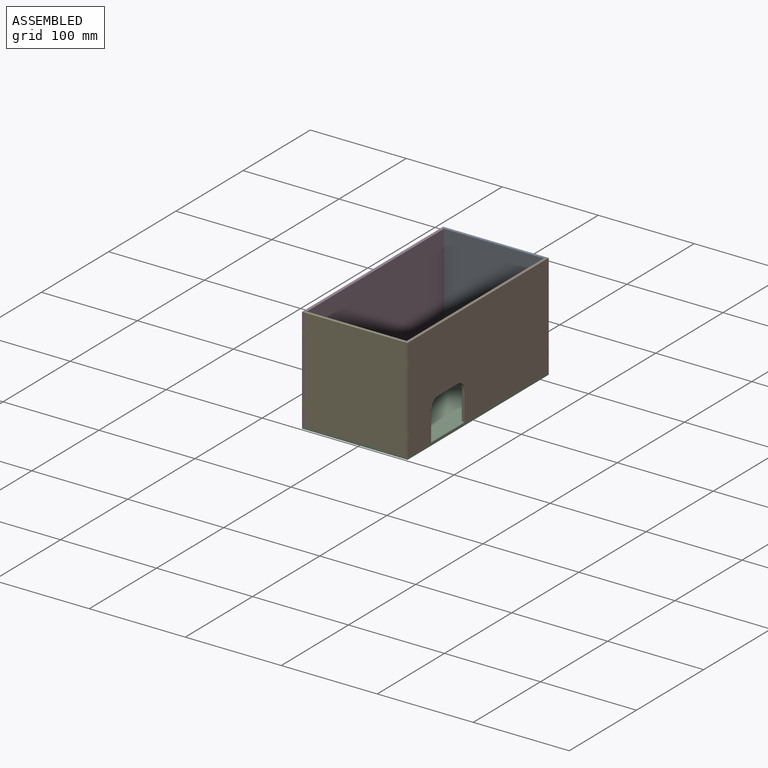
[diagram: assembled view]
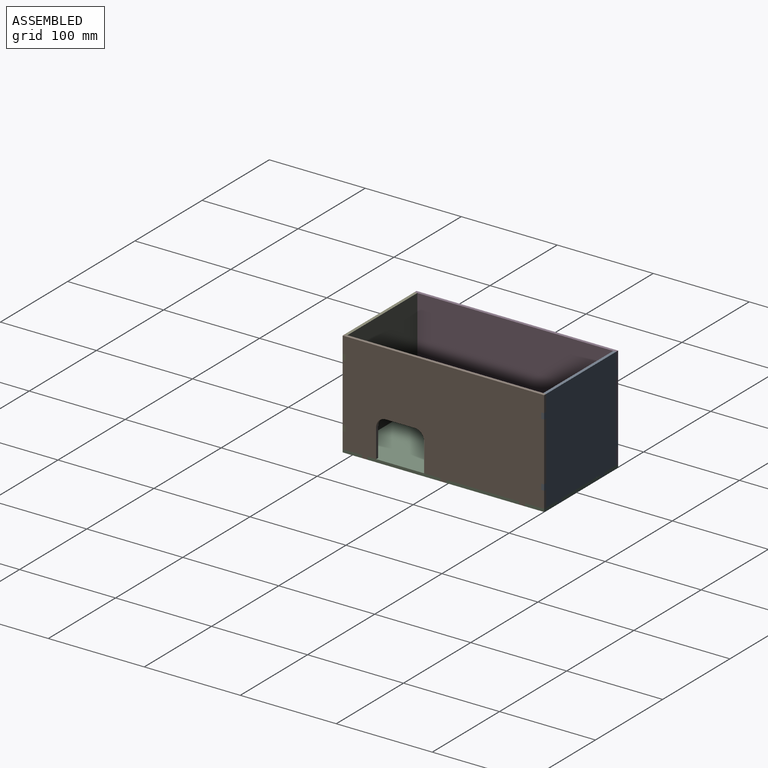
[diagram: assembled view, second angle]
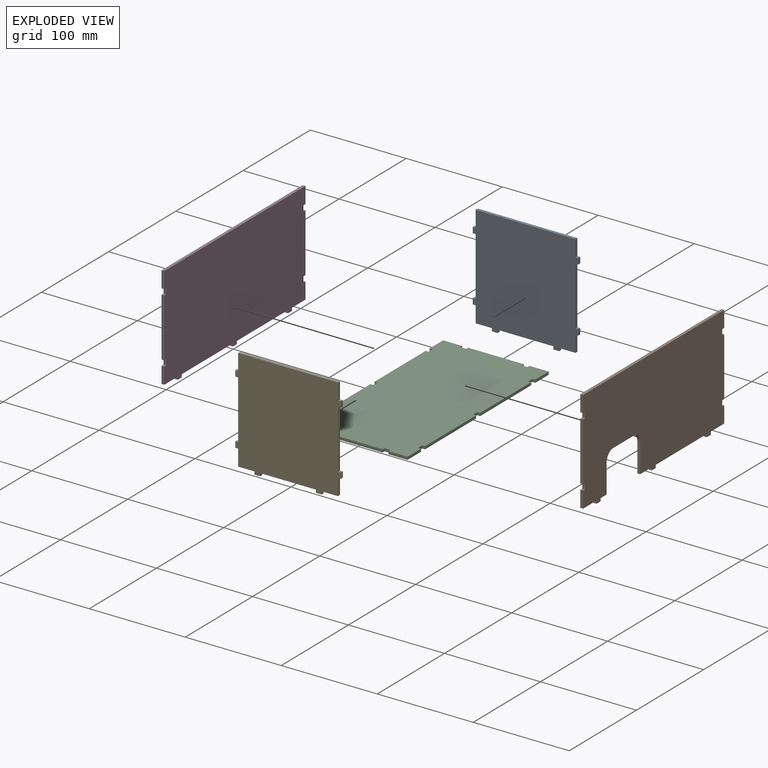
[diagram: exploded view]
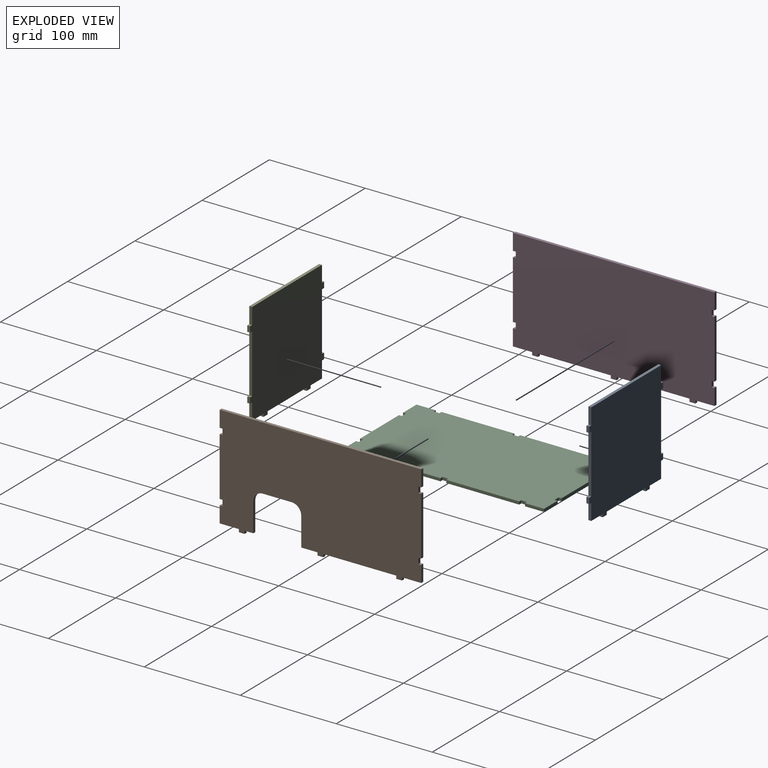
[diagram: exploded view, second angle]
ASSEMBLY  parts=5 mates=4
PART A: 30 faces, bbox 110x3x110 mm
  f0: plane 3x3mm, normal (1,0,0), area 9mm2, adj f1,f27,f28,f29
  f1: plane 58x3mm, normal (0,0,-1), area 174mm2, adj f0,f2,f28,f29
  f2: plane 3x3mm, normal (-1,0,0), area 9mm2, adj f1,f3,f28,f29
  f3: plane 6x3mm, normal (0,0,-1), area 18mm2, adj f2,f4,f28,f29
  f4: plane 3x3mm, normal (1,0,0), area 9mm2, adj f3,f5,f28,f29
  f5: plane 17x3mm, normal (0,0,-1), area 51mm2, adj f4,f6,f28,f29
  f6: plane 17x3mm, normal (1,0,0), area 51mm2, adj f5,f7,f28,f29
  f7: plane 3x3mm, normal (0,0,-1), area 9mm2, adj f6,f8,f28,f29
  f8: plane 6x3mm, normal (1,0,0), area 18mm2, adj f7,f9,f28,f29
  f9: plane 3x3mm, normal (0,0,1), area 9mm2, adj f8,f10,f28,f29
  f10: plane 61x3mm, normal (1,0,0), area 183mm2, adj f9,f11,f28,f29
  f11: plane 3x3mm, normal (0,0,-1), area 9mm2, adj f10,f12,f28,f29
  f12: plane 6x3mm, normal (1,0,0), area 18mm2, adj f11,f13,f28,f29
  f13: plane 3x3mm, normal (0,0,1), area 9mm2, adj f12,f14,f28,f29
  f14: plane 17x3mm, normal (1,0,0), area 51mm2, adj f13,f15,f28,f29
  f15: plane 104x3mm, normal (0,0,1), area 312mm2, adj f14,f16,f28,f29
  f16: plane 17x3mm, normal (-1,0,0), area 51mm2, adj f15,f17,f28,f29
  f17: plane 3x3mm, normal (0,0,1), area 9mm2, adj f16,f18,f28,f29
  f18: plane 6x3mm, normal (-1,0,0), area 18mm2, adj f17,f19,f28,f29
  f19: plane 3x3mm, normal (0,0,-1), area 9mm2, adj f18,f20,f28,f29
  f20: plane 61x3mm, normal (-1,0,0), area 183mm2, adj f19,f21,f28,f29
  f21: plane 3x3mm, normal (0,0,1), area 9mm2, adj f20,f22,f28,f29
  f22: plane 6x3mm, normal (-1,0,0), area 18mm2, adj f21,f23,f28,f29
  f23: plane 3x3mm, normal (0,0,-1), area 9mm2, adj f22,f24,f28,f29
  f24: plane 17x3mm, normal (-1,0,0), area 51mm2, adj f23,f25,f28,f29
  f25: plane 17x3mm, normal (0,0,-1), area 51mm2, adj f24,f26,f28,f29
  f26: plane 3x3mm, normal (-1,0,0), area 9mm2, adj f25,f27,f28,f29
  f27: plane 6x3mm, normal (0,0,-1), area 18mm2, adj f0,f26,f28,f29
  f28: plane 110x110mm, normal (0,-1,0), area 11236mm2, adj f0,f1,f2,f3,f4,f5,f6,f7
  f29: plane 110x110mm, normal (0,1,0), area 11236mm2, adj f0,f1,f2,f3,f4,f5,f6,f7
PART B: 40 faces, bbox 3x210x110 mm
  f0: plane 9x3mm, normal (0,0,-1), area 27mm2, adj f5,f6,f16,f35
  f1: plane 61x3mm, normal (0,1,0), area 183mm2, adj f5,f6,f29,f32
  f2: plane 17x3mm, normal (0,1,0), area 51mm2, adj f5,f6,f13,f31
  f3: plane 17x3mm, normal (0,-1,0), area 51mm2, adj f5,f6,f9,f27
  f4: plane 61x3mm, normal (0,-1,0), area 183mm2, adj f5,f6,f24,f26
  f5: plane 210x110mm, normal (1,0,0), area 20494.9mm2, adj f0,f1,f2,f3,f4,f7,f8,f9
  f6: plane 210x110mm, normal (-1,0,0), area 20494.9mm2, adj f0,f1,f2,f3,f4,f7,f8,f9
  f7: plane 76x3mm, normal (0,0,-1), area 228mm2, adj f5,f6,f19,f20
  f8: plane 17x3mm, normal (0,0,-1), area 51mm2, adj f5,f6,f17,f36
  f9: plane 20x3mm, normal (0,0,-1), area 60mm2, adj f3,f5,f6,f14
  f10: plane 17x3mm, normal (0,1,0), area 51mm2, adj f5,f6,f11,f33
  f11: plane 210x3mm, normal (0,0,1), area 630mm2, adj f5,f6,f10,f12
  f12: plane 17x3mm, normal (0,-1,0), area 51mm2, adj f5,f6,f11,f23
  f13: plane 20x3mm, normal (0,0,-1), area 60mm2, adj f2,f5,f6,f22
  f14: plane 3x3mm, normal (0,-1,0), area 9mm2, adj f5,f6,f9,f15
  f15: plane 6x3mm, normal (0,0,-1), area 18mm2, adj f5,f6,f14,f16
  f16: plane 3x3mm, normal (0,1,0), area 9mm2, adj f0,f5,f6,f15
  f17: plane 3x3mm, normal (0,-1,0), area 9mm2, adj f5,f6,f8,f18
  f18: plane 6x3mm, normal (0,0,-1), area 18mm2, adj f5,f6,f17,f19
  f19: plane 3x3mm, normal (0,1,0), area 9mm2, adj f5,f6,f7,f18
  f20: plane 3x3mm, normal (0,-1,0), area 9mm2, adj f5,f6,f7,f21
  f21: plane 6x3mm, normal (0,0,-1), area 18mm2, adj f5,f6,f20,f22
  f22: plane 3x3mm, normal (0,1,0), area 9mm2, adj f5,f6,f13,f21
  f23: plane 3x3mm, normal (0,0,-1), area 9mm2, adj f5,f6,f12,f25
  f24: plane 3x3mm, normal (0,0,1), area 9mm2, adj f4,f5,f6,f25
  f25: plane 6x3mm, normal (0,-1,0), area 18mm2, adj f5,f6,f23,f24
  f26: plane 3x3mm, normal (0,0,-1), area 9mm2, adj f4,f5,f6,f28
  f27: plane 3x3mm, normal (0,0,1), area 9mm2, adj f3,f5,f6,f28
  f28: plane 6x3mm, normal (0,-1,0), area 18mm2, adj f5,f6,f26,f27
  f29: plane 3x3mm, normal (0,0,-1), area 9mm2, adj f1,f5,f6,f30
  f30: plane 6x3mm, normal (0,1,0), area 18mm2, adj f5,f6,f29,f31
  f31: plane 3x3mm, normal (0,0,1), area 9mm2, adj f2,f5,f6,f30
  f32: plane 3x3mm, normal (0,0,1), area 9mm2, adj f1,f5,f6,f34
  f33: plane 3x3mm, normal (0,0,-1), area 9mm2, adj f5,f6,f10,f34
  f34: plane 6x3mm, normal (0,1,0), area 18mm2, adj f5,f6,f32,f33
  f35: plane 30x3mm, normal (0,1,0), area 90mm2, adj f0,f5,f6,f39
  f36: plane 30x3mm, normal (0,-1,0), area 90mm2, adj f5,f6,f8,f37
  f37: cylinder r=10mm len=10mm, axis (1,0,0), area 47.1mm2, adj f5,f6,f36,f38
  f38: plane 30x3mm, normal (0,0,-1), area 90mm2, adj f5,f6,f37,f39
  f39: cylinder r=10mm len=10mm, axis (1,0,0), area 47.1mm2, adj f5,f6,f35,f38
PART C: 46 faces, bbox 110x210x3 mm
  f0: plane 20x3mm, normal (0,1,0), area 60mm2, adj f10,f11,f15,f33
  f1: plane 58x3mm, normal (0,1,0), area 174mm2, adj f10,f11,f18,f31
  f2: plane 20x3mm, normal (-1,0,0), area 60mm2, adj f10,f11,f14,f44
  f3: plane 76x3mm, normal (-1,0,0), area 228mm2, adj f10,f11,f35,f43
  f4: plane 76x3mm, normal (-1,0,0), area 228mm2, adj f10,f11,f23,f34
  f5: plane 58x3mm, normal (0,-1,0), area 174mm2, adj f10,f11,f25,f29
  f6: plane 20x3mm, normal (0,-1,0), area 60mm2, adj f8,f10,f11,f26
  f7: plane 76x3mm, normal (1,0,0), area 228mm2, adj f10,f11,f19,f42
  f8: plane 20x3mm, normal (1,0,0), area 60mm2, adj f6,f10,f11,f39
  f9: plane 76x3mm, normal (1,0,0), area 228mm2, adj f10,f11,f21,f37
  f10: plane 210x110mm, normal (0,0,1), area 22920mm2, adj f0,f1,f2,f3,f4,f5,f6,f7
  f11: plane 210x110mm, normal (0,0,-1), area 22920mm2, adj f0,f1,f2,f3,f4,f5,f6,f7
  f12: plane 20x3mm, normal (0,1,0), area 60mm2, adj f10,f11,f13,f16
  f13: plane 20x3mm, normal (-1,0,0), area 60mm2, adj f10,f11,f12,f22
  f14: plane 20x3mm, normal (0,-1,0), area 60mm2, adj f2,f10,f11,f28
  f15: plane 20x3mm, normal (1,0,0), area 60mm2, adj f0,f10,f11,f40
  f16: plane 3x3mm, normal (1,0,0), area 9mm2, adj f10,f11,f12,f17
  f17: plane 6x3mm, normal (0,1,0), area 18mm2, adj f10,f11,f16,f18
  f18: plane 3x3mm, normal (-1,0,0), area 9mm2, adj f1,f10,f11,f17
  f19: plane 3x3mm, normal (0,-1,0), area 9mm2, adj f7,f10,f11,f20
  f20: plane 6x3mm, normal (1,0,0), area 18mm2, adj f10,f11,f19,f21
  f21: plane 3x3mm, normal (0,1,0), area 9mm2, adj f9,f10,f11,f20
  f22: plane 3x3mm, normal (0,-1,0), area 9mm2, adj f10,f11,f13,f24
  f23: plane 3x3mm, normal (0,1,0), area 9mm2, adj f4,f10,f11,f24
  f24: plane 6x3mm, normal (-1,0,0), area 18mm2, adj f10,f11,f22,f23
  f25: plane 3x3mm, normal (1,0,0), area 9mm2, adj f5,f10,f11,f27
  f26: plane 3x3mm, normal (-1,0,0), area 9mm2, adj f6,f10,f11,f27
  f27: plane 6x3mm, normal (0,-1,0), area 18mm2, adj f10,f11,f25,f26
  f28: plane 3x3mm, normal (1,0,0), area 9mm2, adj f10,f11,f14,f30
  f29: plane 3x3mm, normal (-1,0,0), area 9mm2, adj f5,f10,f11,f30
  f30: plane 6x3mm, normal (0,-1,0), area 18mm2, adj f10,f11,f28,f29
  f31: plane 3x3mm, normal (1,0,0), area 9mm2, adj f1,f10,f11,f32
  f32: plane 6x3mm, normal (0,1,0), area 18mm2, adj f10,f11,f31,f33
  f33: plane 3x3mm, normal (-1,0,0), area 9mm2, adj f0,f10,f11,f32
  f34: plane 3x3mm, normal (0,-1,0), area 9mm2, adj f4,f10,f11,f36
  f35: plane 3x3mm, normal (0,1,0), area 9mm2, adj f3,f10,f11,f36
  f36: plane 6x3mm, normal (-1,0,0), area 18mm2, adj f10,f11,f34,f35
  f37: plane 3x3mm, normal (0,-1,0), area 9mm2, adj f9,f10,f11,f38
  f38: plane 6x3mm, normal (1,0,0), area 18mm2, adj f10,f11,f37,f39
  f39: plane 3x3mm, normal (0,1,0), area 9mm2, adj f8,f10,f11,f38
  f40: plane 3x3mm, normal (0,-1,0), area 9mm2, adj f10,f11,f15,f41
  f41: plane 6x3mm, normal (1,0,0), area 18mm2, adj f10,f11,f40,f42
  f42: plane 3x3mm, normal (0,1,0), area 9mm2, adj f7,f10,f11,f41
  f43: plane 3x3mm, normal (0,-1,0), area 9mm2, adj f3,f10,f11,f45
  f44: plane 3x3mm, normal (0,1,0), area 9mm2, adj f2,f10,f11,f45
  f45: plane 6x3mm, normal (-1,0,0), area 18mm2, adj f10,f11,f43,f44
PART D: 34 faces, bbox 3x210x110 mm
  f0: plane 61x3mm, normal (0,1,0), area 183mm2, adj f4,f5,f28,f31
  f1: plane 17x3mm, normal (0,1,0), area 51mm2, adj f4,f5,f12,f30
  f2: plane 17x3mm, normal (0,-1,0), area 51mm2, adj f4,f5,f8,f26
  f3: plane 61x3mm, normal (0,-1,0), area 183mm2, adj f4,f5,f23,f25
  f4: plane 210x110mm, normal (1,0,0), area 22452mm2, adj f0,f1,f2,f3,f6,f7,f8,f9
  f5: plane 210x110mm, normal (-1,0,0), area 22452mm2, adj f0,f1,f2,f3,f6,f7,f8,f9
  f6: plane 76x3mm, normal (0,0,-1), area 228mm2, adj f4,f5,f18,f19
  f7: plane 76x3mm, normal (0,0,-1), area 228mm2, adj f4,f5,f15,f16
  f8: plane 20x3mm, normal (0,0,-1), area 60mm2, adj f2,f4,f5,f13
  f9: plane 17x3mm, normal (0,1,0), area 51mm2, adj f4,f5,f10,f32
  f10: plane 210x3mm, normal (0,0,1), area 630mm2, adj f4,f5,f9,f11
  f11: plane 17x3mm, normal (0,-1,0), area 51mm2, adj f4,f5,f10,f22
  f12: plane 20x3mm, normal (0,0,-1), area 60mm2, adj f1,f4,f5,f21
  f13: plane 3x3mm, normal (0,-1,0), area 9mm2, adj f4,f5,f8,f14
  f14: plane 6x3mm, normal (0,0,-1), area 18mm2, adj f4,f5,f13,f15
  f15: plane 3x3mm, normal (0,1,0), area 9mm2, adj f4,f5,f7,f14
  f16: plane 3x3mm, normal (0,-1,0), area 9mm2, adj f4,f5,f7,f17
  f17: plane 6x3mm, normal (0,0,-1), area 18mm2, adj f4,f5,f16,f18
  f18: plane 3x3mm, normal (0,1,0), area 9mm2, adj f4,f5,f6,f17
  f19: plane 3x3mm, normal (0,-1,0), area 9mm2, adj f4,f5,f6,f20
  f20: plane 6x3mm, normal (0,0,-1), area 18mm2, adj f4,f5,f19,f21
  f21: plane 3x3mm, normal (0,1,0), area 9mm2, adj f4,f5,f12,f20
  f22: plane 3x3mm, normal (0,0,-1), area 9mm2, adj f4,f5,f11,f24
  f23: plane 3x3mm, normal (0,0,1), area 9mm2, adj f3,f4,f5,f24
  f24: plane 6x3mm, normal (0,-1,0), area 18mm2, adj f4,f5,f22,f23
  f25: plane 3x3mm, normal (0,0,-1), area 9mm2, adj f3,f4,f5,f27
  f26: plane 3x3mm, normal (0,0,1), area 9mm2, adj f2,f4,f5,f27
  f27: plane 6x3mm, normal (0,-1,0), area 18mm2, adj f4,f5,f25,f26
  f28: plane 3x3mm, normal (0,0,-1), area 9mm2, adj f0,f4,f5,f29
  f29: plane 6x3mm, normal (0,1,0), area 18mm2, adj f4,f5,f28,f30
  f30: plane 3x3mm, normal (0,0,1), area 9mm2, adj f1,f4,f5,f29
  f31: plane 3x3mm, normal (0,0,1), area 9mm2, adj f0,f4,f5,f33
  f32: plane 3x3mm, normal (0,0,-1), area 9mm2, adj f4,f5,f9,f33
  f33: plane 6x3mm, normal (0,1,0), area 18mm2, adj f4,f5,f31,f32
PART E: same geometry as A
PLACE A t=(0,105,53.5)mm
PLACE B t=(52,0,53.5)mm
PLACE C t=(0,0,-3)mm
PLACE D t=(-55,0,53.5)mm
PLACE E t=(0,-102,53.5)mm
MATE fastened B.f14 <-> C.f39  axis (0,-1,0) through (53.5,-85,-1.5)mm
MATE fastened E.f4 <-> C.f26  axis (1,0,0) through (35,-103.5,-1.5)mm
MATE fastened D.f13 <-> C.f44  axis (0,-1,0) through (-53.5,-85,-1.5)mm
MATE fastened A.f4 <-> C.f33  axis (1,0,0) through (35,103.5,-1.5)mm
